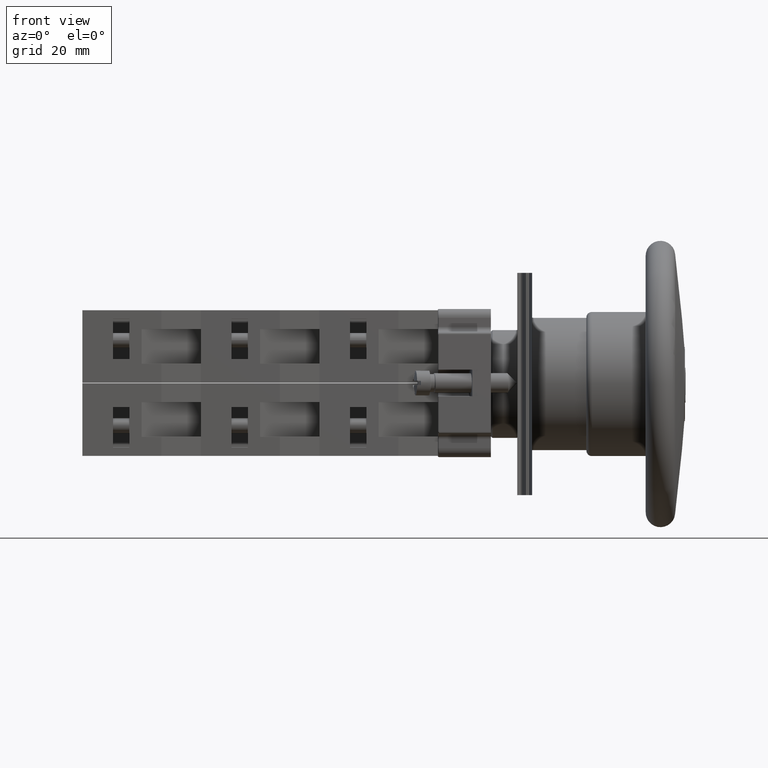
[diagram: clean part render]
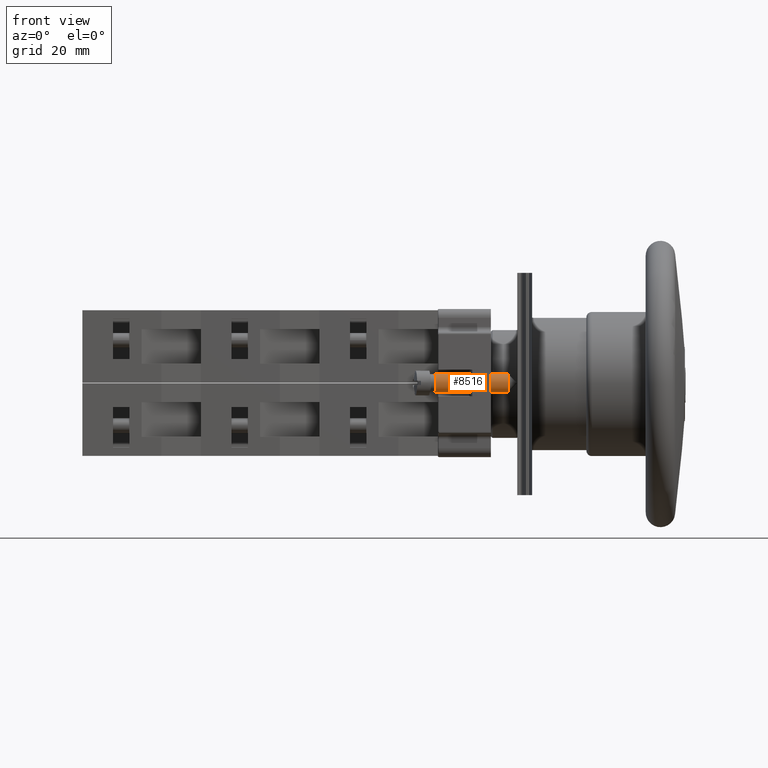
[diagram: same view with one face highlighted and labeled with its STEP entity id]
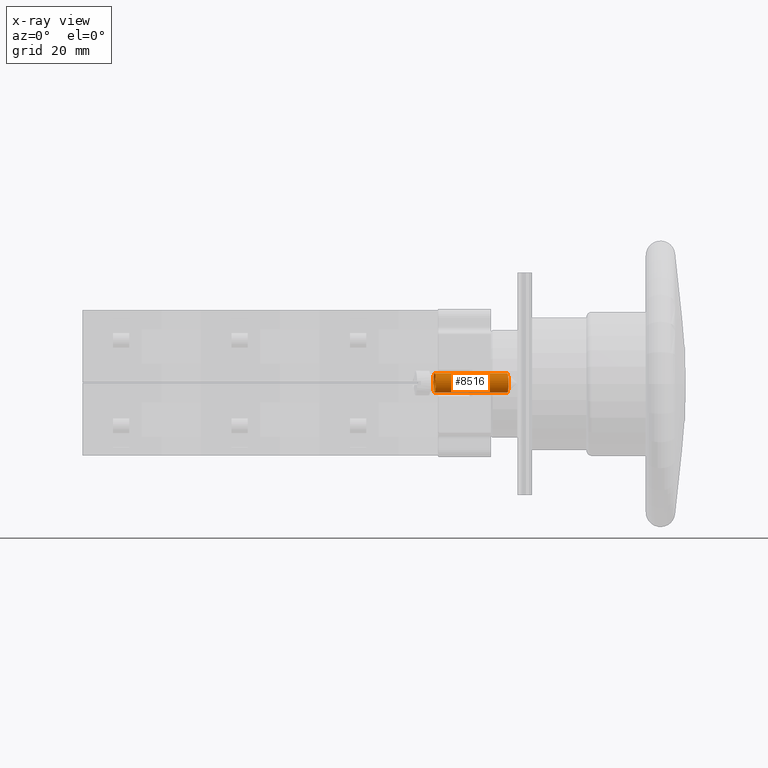
[diagram: x-ray of the same camera — body ghosted, the highlighted face saturated]
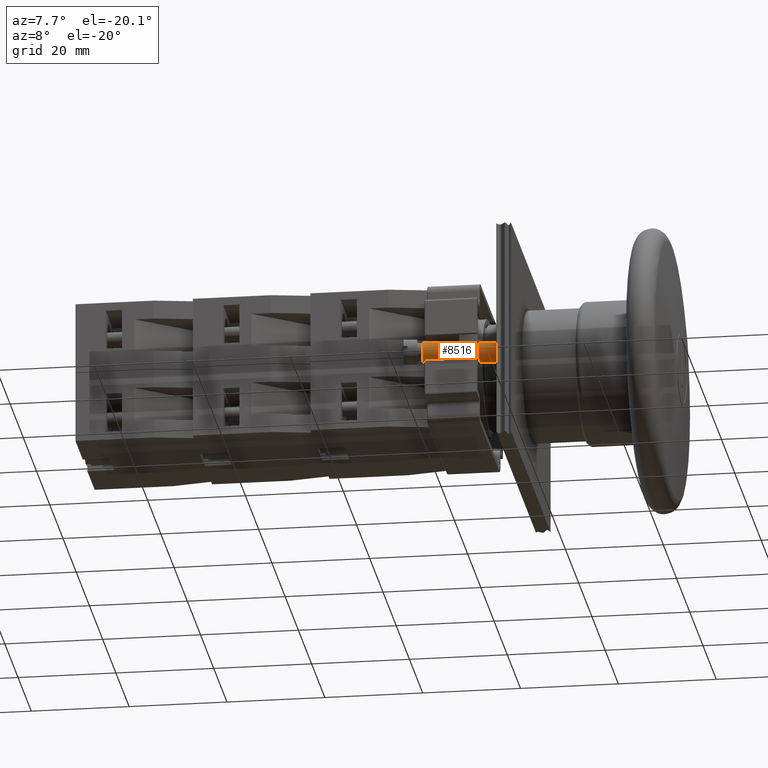
[diagram: same view with one face highlighted and labeled with its STEP entity id]
A machine part, front view. The second image highlights one B-rep face of the part: STEP entity #8516.
The next image is the same camera in x-ray: the body ghosted, the highlighted face saturated — about 0% of this face is hidden behind the body in this view.
A second angle (auxiliary view) of the same face is appended — the face is thin or edge-on in the first view.
In plain terms, the highlighted cylindrical surface (bore or boss wall) has radius 2 mm, axis along (0.9914, 0.1305, 0).
Its self-contained STEP definition (entity closure, byte-faithful):
#8485=CARTESIAN_POINT('',(-1.999999999999998,0.0,-1.119999999999999));
#8486=VERTEX_POINT('',#8485);
#8487=CARTESIAN_POINT('',(0.0,0.0,-1.119999999999999));
#8488=DIRECTION('',(0.0,0.0,-1.0));
#8489=DIRECTION('',(-1.0,0.0,0.0));
#8490=AXIS2_PLACEMENT_3D('',#8487,#8488,#8489);
#8491=CIRCLE('',#8490,1.999999999999998);
#8492=EDGE_CURVE('',#8486,#8486,#8491,.T.);
#8497=CARTESIAN_POINT('',(0.0,0.0,-8.559999999999999));
#8498=DIRECTION('',(0.0,0.0,-1.0));
#8499=DIRECTION('',(-1.0,0.0,0.0));
#8500=AXIS2_PLACEMENT_3D('',#8497,#8498,#8499);
#8501=CYLINDRICAL_SURFACE('',#8500,1.999999999999999);
#8502=CARTESIAN_POINT('',(-2.000000000000000,0.0,-15.999999999999998));
#8503=VERTEX_POINT('',#8502);
#8504=CARTESIAN_POINT('',(0.0,0.0,-15.999999999999998));
#8505=DIRECTION('',(0.0,0.0,-1.0));
#8506=DIRECTION('',(-1.0,0.0,0.0));
#8507=AXIS2_PLACEMENT_3D('',#8504,#8505,#8506);
#8508=CIRCLE('',#8507,2.000000000000000);
#8509=EDGE_CURVE('',#8503,#8503,#8508,.T.);
#8510=ORIENTED_EDGE('',*,*,#8509,.F.);
#8511=EDGE_LOOP('',(#8510));
#8512=FACE_OUTER_BOUND('',#8511,.T.);
#8513=ORIENTED_EDGE('',*,*,#8492,.T.);
#8514=EDGE_LOOP('',(#8513));
#8515=FACE_BOUND('',#8514,.T.);
#8516=ADVANCED_FACE('',(#8512,#8515),#8501,.T.);